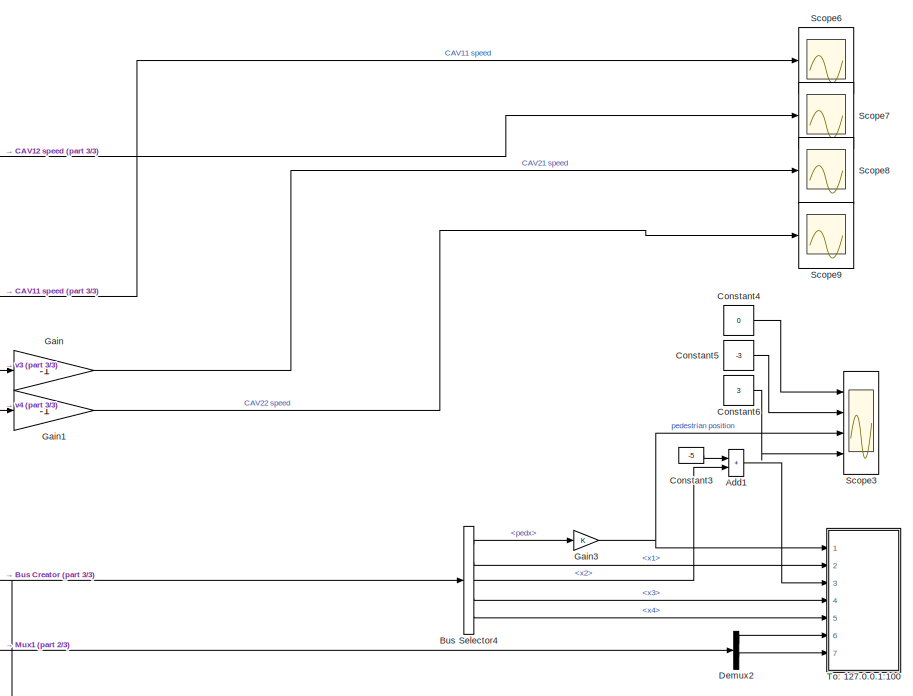
[diagram: root canvas - part 1/3, top right region]
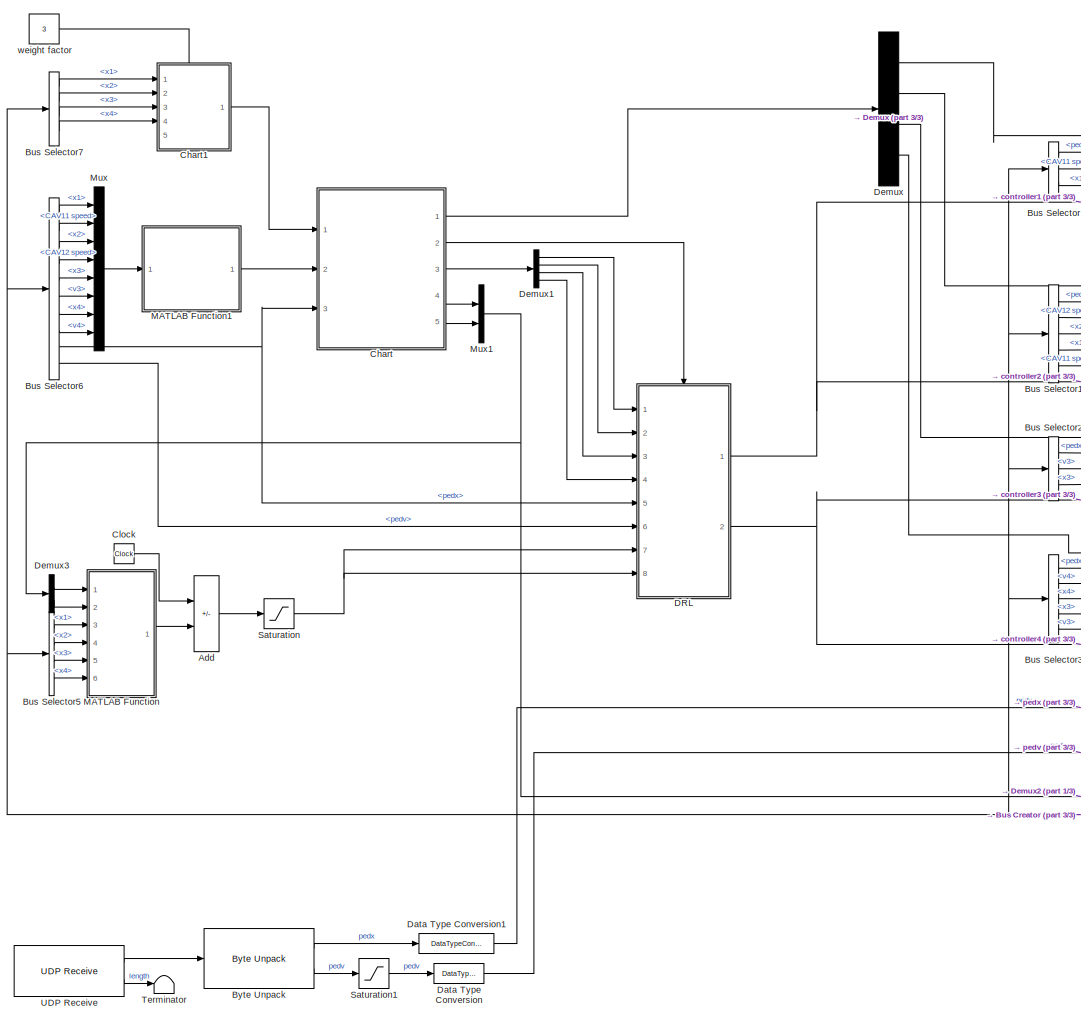
[diagram: root canvas - part 2/3, left side, full height]
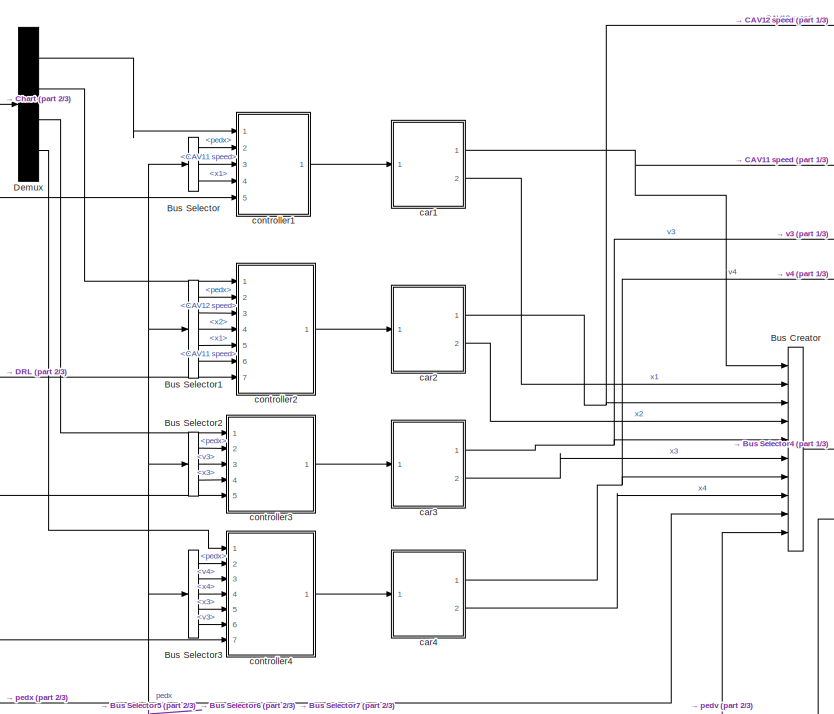
[diagram: root canvas - part 3/3, central region]
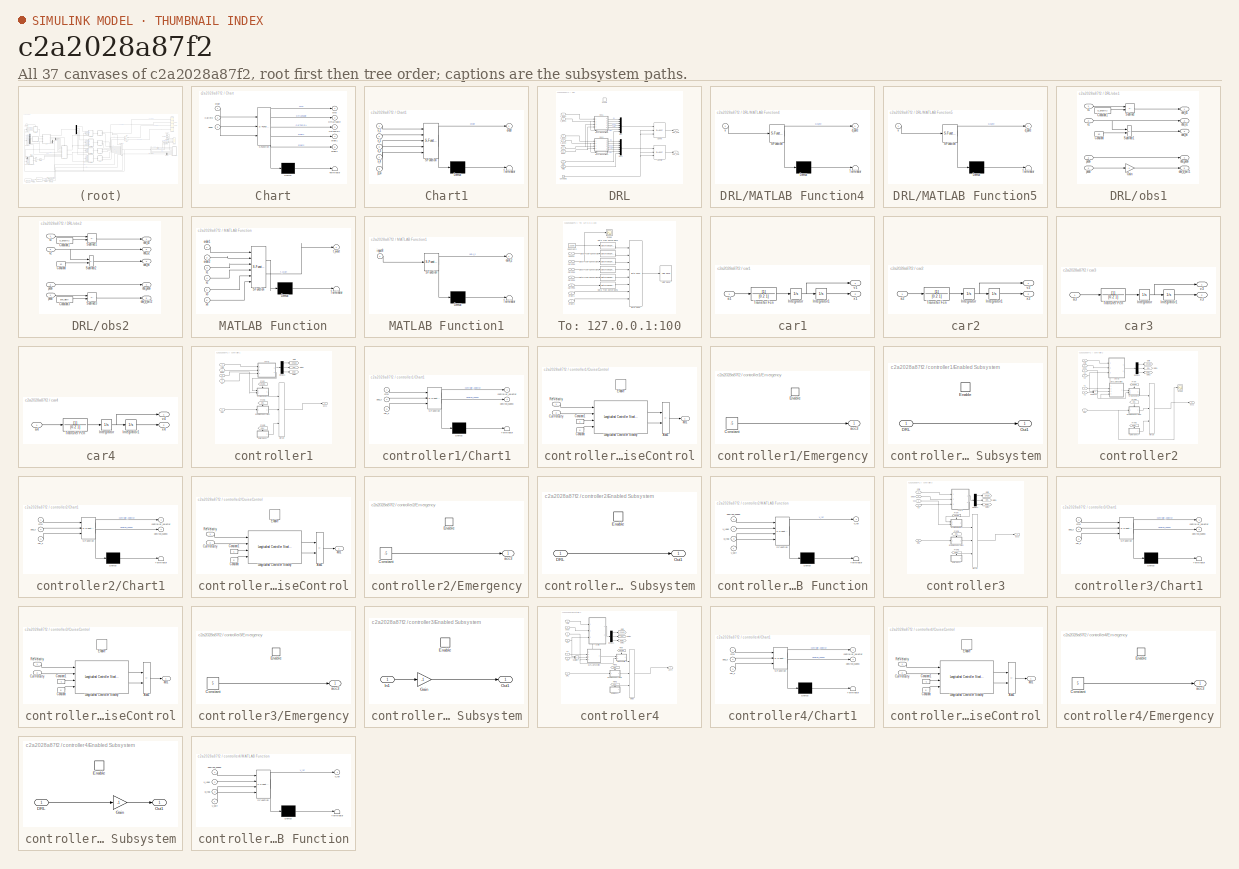
[diagram: thumbnail index - all 37 canvases of the model, root first then tree order]
MODEL slx_c2a2028a87f2
KIND model
CONFIG AbsTol = auto
CONFIG EnableMultiTasking = off
CONFIG FixedStep = auto
CONFIG MaxStep = auto
CONFIG MinStep = auto
CONFIG RelTol = 1e-3
CONFIG SampleTimeConstraint = Unconstrained
CONFIG SolverName = VariableStepAuto
CONFIG StartTime = 0.0
CONFIG StopTime = 30
BLOCK [Sum] Add
  IconShape = rectangular
  Inputs = -+
  Ports = [2, 1]
BLOCK [Sum] Add1
  IconShape = rectangular
  Ports = [2, 1]
BLOCK [BusCreator] Bus Creator
  DisplayOption = bar
  InheritFromInputs = on
  Inputs = 10
  Ports = [10, 1]
BLOCK [BusSelector] Bus Selector
  OutputSignals = pedx,CAV11 speed,x1
  Ports = [1, 3]
BLOCK [BusSelector] Bus Selector1
  OutputSignals = pedx,CAV12 speed,x2,x1,CAV11 speed
  Ports = [1, 5]
BLOCK [BusSelector] Bus Selector2
  OutputSignals = pedx,v3,x3
  Ports = [1, 3]
BLOCK [BusSelector] Bus Selector3
  OutputSignals = pedx,v4,x4,x3,v3
  Ports = [1, 5]
BLOCK [BusSelector] Bus Selector4
  OutputSignals = pedx,x1,x2,x3,x4
  Ports = [1, 5]
BLOCK [BusSelector] Bus Selector5
  OutputSignals = x1,x2,x3,x4
  Ports = [1, 4]
BLOCK [BusSelector] Bus Selector6
  OutputSignals = x1,CAV11 speed,x2,CAV12 speed,x3,v3,x4,v4,pedx,pedv
  Ports = [1, 10]
BLOCK [BusSelector] Bus Selector7
  OutputSignals = x1,x2,x3,x4
  Ports = [1, 4]
BLOCK [Reference] Byte Unpack  REF=etargetslib/Byte Unpack
  Ports = [1, 2]
  SourceBlock = etargetslib/Byte Unpack
  SourceProductBaseCode = ME
  SourceType = Byte Unpack
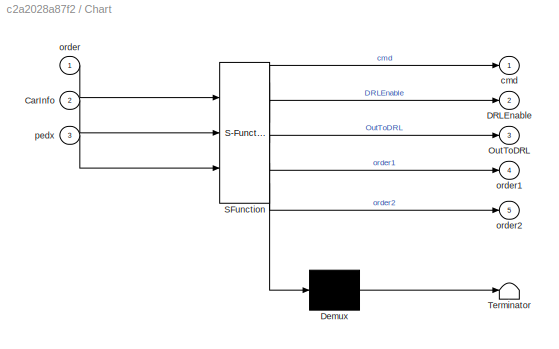
BLOCK [SubSystem] Chart
  ErrorFcn = Stateflow.Translate.translate
  PermitHierarchicalResolution = ExplicitOnly
  Ports = [3, 5]
  RequestExecContextInheritance = off
  SFBlockType = Chart
  TreatAsAtomicUnit = on
BLOCK [Demux] Chart/ Demux 
  Outputs = 1
  Ports = [1, 1]
BLOCK [S-Function] Chart/ SFunction 
  EnableBusSupport = on
  FunctionName = sf_sfun
  PortCounts = [3 6]
  Ports = [3, 6]
  SFcnIsStateOwnerBlock = off
  SFunctionDeploymentMode = off
  Tag = Stateflow S-Function 8
BLOCK [Terminator] Chart/ Terminator 
BLOCK [Inport] Chart/CarInfo
  Port = 2
BLOCK [Outport] Chart/DRLEnable
  Port = 2
BLOCK [Outport] Chart/OutToDRL
  Port = 3
BLOCK [Outport] Chart/cmd
BLOCK [Inport] Chart/order
BLOCK [Outport] Chart/order1
  Port = 4
BLOCK [Outport] Chart/order2
  Port = 5
BLOCK [Inport] Chart/pedx
  Port = 3
BLOCK [SubSystem] Chart1
  ErrorFcn = Stateflow.Translate.translate
  PermitHierarchicalResolution = ExplicitOnly
  PortSchema = {"entries":[{"content":{"sides":[{"content":{"connectorIds":["In1","In2","In3","In4"]},"type":"ConnectorPlacement.EquallySpacedRectSide","uuid":"8a846dc3-1f93-46d5-8c0a-752417c681d9"},{"content":{"connectorIds":["Out1"],"side":"RIGHT"},"type":"ConnectorPlacement.EquallySpacedRectSide","uuid":"76ec7057-478a-4564-adde-c35c4c2d4bf9"},{"content":{"connectorIds":["In5"],"side":"TOP"},"type":"ConnectorP...<+263ch>
  Ports = [5, 1]
  RequestExecContextInheritance = off
  SFBlockType = Chart
  TreatAsAtomicUnit = on
BLOCK [Demux] Chart1/ Demux 
  Outputs = 1
  Ports = [1, 1]
BLOCK [S-Function] Chart1/ SFunction 
  EnableBusSupport = on
  FunctionName = sf_sfun
  PortCounts = [5 2]
  Ports = [5, 2]
  SFcnIsStateOwnerBlock = off
  SFunctionDeploymentMode = off
  Tag = Stateflow S-Function 11
BLOCK [Terminator] Chart1/ Terminator 
BLOCK [Outport] Chart1/order
BLOCK [Inport] Chart1/p_w
  Port = 5
BLOCK [Inport] Chart1/x_1
BLOCK [Inport] Chart1/x_2
  Port = 2
BLOCK [Inport] Chart1/x_3
  Port = 3
BLOCK [Inport] Chart1/x_4
  Port = 4
BLOCK [Clock] Clock
BLOCK [Constant] Constant3
  Value = -5
BLOCK [Constant] Constant4
  Value = 0
BLOCK [Constant] Constant5
  Value = -3
BLOCK [Constant] Constant6
  Value = 3
BLOCK [SubSystem] DRL
  Ports = [8, 2, 1]
  RequestExecContextInheritance = off
  TreatAsAtomicUnit = on
BLOCK [Reference] DRL/Agent A  REF=rllib/RL Agent
  Ports = [3, 1]
  SourceBlock = rllib/RL Agent
  SourceProductBaseCode = RL
  SourceType = RL Agent
BLOCK [Reference] DRL/Agent B  REF=rllib/RL Agent
  Ports = [3, 1]
  SourceBlock = rllib/RL Agent
  SourceProductBaseCode = RL
  SourceType = RL Agent
BLOCK [Constant] DRL/Constant2
  Value = 0
BLOCK [Outport] DRL/DRL_out1
BLOCK [Outport] DRL/DRL_out2
  Port = 2
BLOCK [EnablePort] DRL/Enable
  Ports = []
BLOCK [SubSystem] DRL/MATLAB Function4
  ErrorFcn = Stateflow.Translate.translate
  PermitHierarchicalResolution = ExplicitOnly
  Ports = [1, 1]
  RequestExecContextInheritance = off
  SFBlockType = MATLAB Function
  TreatAsAtomicUnit = on
BLOCK [Demux] DRL/MATLAB Function4/ Demux 
  Outputs = 1
  Ports = [1, 1]
BLOCK [S-Function] DRL/MATLAB Function4/ SFunction 
  EnableBusSupport = on
  FunctionName = sf_sfun
  PortCounts = [1 2]
  Ports = [1, 2]
  SFcnIsStateOwnerBlock = off
  SFunctionDeploymentMode = off
  Tag = Stateflow S-Function 7
BLOCK [Terminator] DRL/MATLAB Function4/ Terminator 
BLOCK [Outport] DRL/MATLAB Function4/d_safe
BLOCK [Inport] DRL/MATLAB Function4/v
BLOCK [SubSystem] DRL/MATLAB Function5
  ErrorFcn = Stateflow.Translate.translate
  PermitHierarchicalResolution = ExplicitOnly
  Ports = [1, 1]
  RequestExecContextInheritance = off
  SFBlockType = MATLAB Function
  TreatAsAtomicUnit = on
BLOCK [Demux] DRL/MATLAB Function5/ Demux 
  Outputs = 1
  Ports = [1, 1]
BLOCK [S-Function] DRL/MATLAB Function5/ SFunction 
  EnableBusSupport = on
  FunctionName = sf_sfun
  PortCounts = [1 2]
  Ports = [1, 2]
  SFcnIsStateOwnerBlock = off
  SFunctionDeploymentMode = off
  Tag = Stateflow S-Function 10
BLOCK [Terminator] DRL/MATLAB Function5/ Terminator 
BLOCK [Outport] DRL/MATLAB Function5/d_safe
BLOCK [Inport] DRL/MATLAB Function5/v
BLOCK [Mux] DRL/Mux
  DisplayOption = bar
  Inputs = 7
  Ports = [7, 1]
BLOCK [Mux] DRL/Mux1
  DisplayOption = bar
  Inputs = 7
  Ports = [7, 1]
BLOCK [SubSystem] DRL/obs1
  Ports = [4, 5]
  RequestExecContextInheritance = off
BLOCK [Constant] DRL/obs1/Constant
  Value = 10
BLOCK [Constant] DRL/obs1/Constant1
  Value = cz_length/2
BLOCK [Gain] DRL/obs1/Gain
  Gain = -1
BLOCK [Sum] DRL/obs1/Subtract
  IconShape = rectangular
  Inputs = --
  Ports = [2, 1]
BLOCK [Sum] DRL/obs1/Subtract1
  IconShape = rectangular
  Inputs = -+
  Ports = [2, 1]
BLOCK [Outport] DRL/obs1/obs_d1
BLOCK [Outport] DRL/obs1/obs_d_exit1
  Port = 5
BLOCK [Outport] DRL/obs1/obs_ev
  Port = 3
BLOCK [Outport] DRL/obs1/obs_pedv
  Port = 4
BLOCK [Outport] DRL/obs1/obs_v1
  Port = 2
BLOCK [Inport] DRL/obs1/pedv
  Port = 3
BLOCK [Inport] DRL/obs1/pedx
  Port = 4
BLOCK [Inport] DRL/obs1/v1
  Port = 2
BLOCK [Inport] DRL/obs1/x1
BLOCK [SubSystem] DRL/obs2
  Ports = [4, 5]
  RequestExecContextInheritance = off
BLOCK [Constant] DRL/obs2/Constant
  Value = 10
BLOCK [Constant] DRL/obs2/Constant1
  Value = cz_length/2
BLOCK [Constant] DRL/obs2/Constant3
  Value = lane_width
BLOCK [Sum] DRL/obs2/Subtract1
  IconShape = rectangular
  Inputs = +-
  Ports = [2, 1]
BLOCK [Sum] DRL/obs2/Subtract2
  IconShape = rectangular
  Inputs = -+
  Ports = [2, 1]
BLOCK [Sum] DRL/obs2/Subtract3
  IconShape = rectangular
  Inputs = -+
  Ports = [2, 1]
BLOCK [Outport] DRL/obs2/obs_d2
BLOCK [Outport] DRL/obs2/obs_d_exit2
  Port = 5
BLOCK [Outport] DRL/obs2/obs_ev
  Port = 3
BLOCK [Outport] DRL/obs2/obs_pedv
  Port = 4
BLOCK [Outport] DRL/obs2/obs_v2
  Port = 2
BLOCK [Inport] DRL/obs2/pedv
  Port = 3
BLOCK [Inport] DRL/obs2/pedx
  Port = 4
BLOCK [Inport] DRL/obs2/v2
  Port = 2
BLOCK [Inport] DRL/obs2/x2
BLOCK [Inport] DRL/pedv
  Port = 6
BLOCK [Inport] DRL/pedx
  Port = 5
BLOCK [Inport] DRL/v_lane1
  Port = 2
BLOCK [Inport] DRL/v_lane2
  Port = 4
BLOCK [Inport] DRL/wait1
  Port = 7
BLOCK [Inport] DRL/wait2
  Port = 8
BLOCK [Inport] DRL/x_lane1
BLOCK [Inport] DRL/x_lane2
  Port = 3
BLOCK [DataTypeConversion] Data Type Conversion
  OutDataTypeStr = double
  RndMeth = Floor
  SaturateOnIntegerOverflow = off
BLOCK [DataTypeConversion] Data Type Conversion1
  OutDataTypeStr = double
  RndMeth = Floor
  SaturateOnIntegerOverflow = off
BLOCK [Demux] Demux
  Ports = [1, 4]
BLOCK [Demux] Demux1
  Ports = [1, 4]
BLOCK [Demux] Demux2
  Outputs = 2
  Ports = [1, 2]
BLOCK [Demux] Demux3
  Outputs = 2
  Ports = [1, 2]
BLOCK [Gain] Gain
  Gain = -1
BLOCK [Gain] Gain1
  Gain = -1
BLOCK [Gain] Gain3
BLOCK [SubSystem] MATLAB Function
  ErrorFcn = Stateflow.Translate.translate
  PermitHierarchicalResolution = ExplicitOnly
  Ports = [6, 1]
  RequestExecContextInheritance = off
  SFBlockType = MATLAB Function
  TreatAsAtomicUnit = on
BLOCK [Demux] MATLAB Function/ Demux 
  Outputs = 1
  Ports = [1, 1]
BLOCK [S-Function] MATLAB Function/ SFunction 
  EnableBusSupport = on
  FunctionName = sf_sfun
  PortCounts = [6 2]
  Ports = [6, 2]
  SFcnIsStateOwnerBlock = off
  SFunctionDeploymentMode = off
  Tag = Stateflow S-Function 12
BLOCK [Terminator] MATLAB Function/ Terminator 
BLOCK [Inport] MATLAB Function/order1
BLOCK [Inport] MATLAB Function/order2
  Port = 2
BLOCK [Outport] MATLAB Function/t_wait
BLOCK [Inport] MATLAB Function/x1
  Port = 3
BLOCK [Inport] MATLAB Function/x2
  Port = 4
BLOCK [Inport] MATLAB Function/x3
  Port = 5
BLOCK [Inport] MATLAB Function/x4
  Port = 6
BLOCK [SubSystem] MATLAB Function1
  ErrorFcn = Stateflow.Translate.translate
  PermitHierarchicalResolution = ExplicitOnly
  Ports = [1, 1]
  RequestExecContextInheritance = off
  SFBlockType = MATLAB Function
  TreatAsAtomicUnit = on
BLOCK [Demux] MATLAB Function1/ Demux 
  Outputs = 1
  Ports = [1, 1]
BLOCK [S-Function] MATLAB Function1/ SFunction 
  EnableBusSupport = on
  FunctionName = sf_sfun
  PortCounts = [1 2]
  Ports = [1, 2]
  SFcnIsStateOwnerBlock = off
  SFunctionDeploymentMode = off
  Tag = Stateflow S-Function 9
BLOCK [Terminator] MATLAB Function1/ Terminator 
BLOCK [Inport] MATLAB Function1/input8
BLOCK [Outport] MATLAB Function1/out4_2
BLOCK [Mux] Mux
  DisplayOption = bar
  Inputs = 8
  Ports = [8, 1]
BLOCK [Mux] Mux1
  DisplayOption = bar
  Inputs = 2
  Ports = [2, 1]
BLOCK [Saturate] Saturation
  LowerLimit = 0
  UpperLimit = 20
BLOCK [Saturate] Saturation1
  LowerLimit = 0
  UpperLimit = 2
BLOCK [Scope] Scope3
  Floating = off
  NumInputPorts = 4
  Ports = [4]
  ScopeSpecificationString = Simulink.scopes.TimeScopeBlockCfg('CurrentConfiguration', extmgr.ConfigurationSet(extmgr.Configuration('Core','General UI',true,'FigureColor',[1 1 1],'ShowStatusbar',false),extmgr.Configuration('Core','Source UI',true),extmgr.Configuration('Sources','WiredSimulink',true,'DataLoggingVariableName','ScopeData1'),extmgr.Configuration('Visuals','Time Domain',true,'SerializedDisplays',{struct('MinYLimRe...<+1894ch>
BLOCK [Scope] Scope6
  Floating = off
  NumInputPorts = 1
  Ports = [1]
  ScopeSpecificationString = Simulink.scopes.TimeScopeBlockCfg('CurrentConfiguration', extmgr.ConfigurationSet(extmgr.Configuration('Core','General UI',true,'FigureColor',[1 1 1],'ShowStatusbar',false),extmgr.Configuration('Core','Source UI',true),extmgr.Configuration('Sources','WiredSimulink',true,'DataLoggingVariableName','ScopeData2','DataLoggingSaveFormat','Structure'),extmgr.Configuration('Visuals','Time Domain',true,'Se...<+1838ch>
BLOCK [Scope] Scope7
  Floating = off
  NumInputPorts = 1
  Ports = [1]
  ScopeSpecificationString = Simulink.scopes.TimeScopeBlockCfg('CurrentConfiguration', extmgr.ConfigurationSet(extmgr.Configuration('Core','General UI',true,'FigureColor',[1 1 1],'ShowStatusbar',false),extmgr.Configuration('Core','Source UI',true),extmgr.Configuration('Sources','WiredSimulink',true,'DataLoggingVariableName','ScopeData3','DataLoggingSaveFormat','Structure'),extmgr.Configuration('Visuals','Time Domain',true,'Se...<+1793ch>
BLOCK [Scope] Scope8
  Floating = off
  NumInputPorts = 1
  Ports = [1]
  ScopeSpecificationString = Simulink.scopes.TimeScopeBlockCfg('CurrentConfiguration', extmgr.ConfigurationSet(extmgr.Configuration('Core','General UI',true,'FigureColor',[1 1 1],'ShowStatusbar',false,'ShowMainToolbar',false),extmgr.Configuration('Core','Source UI',true),extmgr.Configuration('Sources','WiredSimulink',true,'DataLoggingVariableName','ScopeData4','DataLoggingSaveFormat','Structure'),extmgr.Configuration('Visuals...<+1860ch>
BLOCK [Scope] Scope9
  Floating = off
  NumInputPorts = 1
  Ports = [1]
  ScopeSpecificationString = Simulink.scopes.TimeScopeBlockCfg('CurrentConfiguration', extmgr.ConfigurationSet(extmgr.Configuration('Core','General UI',true,'FigureColor',[1 1 1],'ShowStatusbar',false),extmgr.Configuration('Core','Source UI',true),extmgr.Configuration('Sources','WiredSimulink',true,'DataLoggingVariableName','ScopeData5','DataLoggingSaveFormat','Structure'),extmgr.Configuration('Visuals','Time Domain',true,'Se...<+1795ch>
BLOCK [Terminator] Terminator
BLOCK [SubSystem] To: 127.0.0.1:100
  Ports = [7]
  RequestExecContextInheritance = off
BLOCK [Reference] To: 127.0.0.1:100/Byte Pack  REF=etargetslib/Byte Pack
  Ports = [8, 1]
  SourceBlock = etargetslib/Byte Pack
  SourceProductBaseCode = ME
  SourceType = Byte pack
BLOCK [Inport] To: 127.0.0.1:100/Car2Pos
  Port = 3
BLOCK [Inport] To: 127.0.0.1:100/Car3Pos
  Port = 4
BLOCK [Inport] To: 127.0.0.1:100/Car4Pos
  Port = 5
BLOCK [Constant] To: 127.0.0.1:100/Constant2
  SampleTime = 0.02
  Value = 23205
BLOCK [DataTypeConversion] To: 127.0.0.1:100/Data Type Conversion
  OutDataTypeStr = single
  RndMeth = Floor
  SaturateOnIntegerOverflow = off
BLOCK [DataTypeConversion] To: 127.0.0.1:100/Data Type Conversion1
  OutDataTypeStr = single
  RndMeth = Floor
  SaturateOnIntegerOverflow = off
BLOCK [DataTypeConversion] To: 127.0.0.1:100/Data Type Conversion2
  OutDataTypeStr = single
  RndMeth = Floor
  SaturateOnIntegerOverflow = off
BLOCK [DataTypeConversion] To: 127.0.0.1:100/Data Type Conversion3
  OutDataTypeStr = uint16
  RndMeth = Floor
  SaturateOnIntegerOverflow = off
BLOCK [DataTypeConversion] To: 127.0.0.1:100/Data Type Conversion4
  OutDataTypeStr = single
  RndMeth = Floor
  SaturateOnIntegerOverflow = off
BLOCK [DataTypeConversion] To: 127.0.0.1:100/Data Type Conversion5
  OutDataTypeStr = single
  RndMeth = Floor
  SaturateOnIntegerOverflow = off
BLOCK [Scope] To: 127.0.0.1:100/Scope
  Floating = off
  NumInputPorts = 1
  Ports = [1]
  ScopeSpecificationString = Simulink.scopes.TimeScopeBlockCfg('CurrentConfiguration', extmgr.ConfigurationSet(extmgr.Configuration('Core','General UI',true),extmgr.Configuration('Core','Source UI',true),extmgr.Configuration('Sources','WiredSimulink',true,'DataLoggingVariableName','ScopeData1'),extmgr.Configuration('Visuals','Time Domain',true,'SerializedDisplays',{struct('MinYLimReal','-40.00000','MaxYLimReal','-20.00000','Y...<+1403ch>
BLOCK [Reference] To: 127.0.0.1:100/UDP Send  REF=dspnetwork/UDP Send
  Ports = [1]
  SourceBlock = dspnetwork/UDP Send
  SourceProductBaseCode = SL
  SourceType = UDP Send
BLOCK [Inport] To: 127.0.0.1:100/car1Pos
  Port = 2
BLOCK [Inport] To: 127.0.0.1:100/order1
  Port = 6
BLOCK [Inport] To: 127.0.0.1:100/order2
  Port = 7
BLOCK [Inport] To: 127.0.0.1:100/pedPos
BLOCK [Reference] UDP Receive  REF=dspnetwork/UDP Receive
  Ports = [0, 2]
  SourceBlock = dspnetwork/UDP Receive
  SourceProductBaseCode = SL
  SourceType = UDP Receive
BLOCK [SubSystem] car1
  Ports = [1, 2]
  RequestExecContextInheritance = off
BLOCK [Integrator] car1/Integrator
  InitialCondition = 10
  LimitOutput = on
  LowerSaturationLimit = 0
  Ports = [1, 1]
BLOCK [Integrator] car1/Integrator1
  InitialCondition = -30
  Ports = [1, 1]
BLOCK [TransferFcn] car1/Transfer Fcn
  Denominator = [0.2 1]
BLOCK [Inport] car1/a1
BLOCK [Outport] car1/v1
BLOCK [Outport] car1/x1
  Port = 2
BLOCK [SubSystem] car2
  Ports = [1, 2]
  RequestExecContextInheritance = off
BLOCK [Integrator] car2/Integrator
  InitialCondition = 10
  LimitOutput = on
  LowerSaturationLimit = 0
  Ports = [1, 1]
BLOCK [Integrator] car2/Integrator1
  InitialCondition = -75
  Ports = [1, 1]
BLOCK [TransferFcn] car2/Transfer Fcn
  Denominator = [0.2 1]
BLOCK [Inport] car2/a2
BLOCK [Outport] car2/v2
BLOCK [Outport] car2/x2
  Port = 2
BLOCK [SubSystem] car3
  Ports = [1, 2]
  RequestExecContextInheritance = off
BLOCK [Integrator] car3/Integrator
  InitialCondition = -10
  LimitOutput = on
  Ports = [1, 1]
  UpperSaturationLimit = 0
BLOCK [Integrator] car3/Integrator1
  InitialCondition = 35
  Ports = [1, 1]
BLOCK [TransferFcn] car3/Transfer Fcn
  Denominator = [0.2 1]
BLOCK [Inport] car3/a3
BLOCK [Outport] car3/v3
BLOCK [Outport] car3/x3
  Port = 2
BLOCK [SubSystem] car4
  Ports = [1, 2]
  RequestExecContextInheritance = off
BLOCK [Integrator] car4/Integrator
  InitialCondition = -10
  LimitOutput = on
  Ports = [1, 1]
  UpperSaturationLimit = 0
BLOCK [Integrator] car4/Integrator1
  InitialCondition = 70
  Ports = [1, 1]
BLOCK [TransferFcn] car4/Transfer Fcn
  Denominator = [0.2 1]
BLOCK [Inport] car4/a4
BLOCK [Outport] car4/v4
BLOCK [Outport] car4/x4
  Port = 2
BLOCK [SubSystem] controller1
  Ports = [5, 1]
  RequestExecContextInheritance = off
BLOCK [SubSystem] controller1/Chart1
  ErrorFcn = Stateflow.Translate.translate
  PermitHierarchicalResolution = ExplicitOnly
  Ports = [3, 2]
  RequestExecContextInheritance = off
  SFBlockType = Chart
  TreatAsAtomicUnit = on
BLOCK [Demux] controller1/Chart1/ Demux 
  Outputs = 1
  Ports = [1, 1]
BLOCK [S-Function] controller1/Chart1/ SFunction 
  EnableBusSupport = on
  FunctionName = sf_sfun
  PortCounts = [3 3]
  Ports = [3, 3]
  SFcnIsStateOwnerBlock = off
  SFunctionDeploymentMode = off
  Tag = Stateflow S-Function 1
BLOCK [Terminator] controller1/Chart1/ Terminator 
BLOCK [Inport] controller1/Chart1/car_x
  Port = 3
BLOCK [Inport] controller1/Chart1/cmd
BLOCK [Outport] controller1/Chart1/controller_selector
BLOCK [Outport] controller1/Chart1/desired_speed
  Port = 2
BLOCK [Inport] controller1/Chart1/ped_x
  Port = 2
BLOCK [SubSystem] controller1/CruiseControl
  Ports = [2, 1, 1]
  RequestExecContextInheritance = off
  TreatAsAtomicUnit = on
BLOCK [Sum] controller1/CruiseControl/Add1
  IconShape = rectangular
  Inputs = +-
  Ports = [2, 1]
BLOCK [Constant] controller1/CruiseControl/Constant
  Value = 0
BLOCK [Constant] controller1/CruiseControl/Constant1
BLOCK [Inport] controller1/CruiseControl/CurrVelocity
  Port = 2
BLOCK [EnablePort] controller1/CruiseControl/Enable
  Ports = []
BLOCK [Reference] controller1/CruiseControl/Longitudinal Controller Stanley  REF=drivingvehiclecontroller/Longitudinal Controller Stanley
  Ports = [4, 2]
  SourceBlock = drivingvehiclecontroller/Longitudinal Controller Stanley
  SourceProductBaseCode = DR
  SourceType = Longitudinal Controller Stanley
BLOCK [Inport] controller1/CruiseControl/RefVelocity
BLOCK [Outport] controller1/CruiseControl/acc1
BLOCK [Inport] controller1/DRL
  Port = 5
BLOCK [Demux] controller1/Demux1
  Outputs = 3
  Ports = [1, 3]
BLOCK [SubSystem] controller1/Emergency
  Ports = [0, 1, 1]
  RequestExecContextInheritance = off
  TreatAsAtomicUnit = on
BLOCK [Constant] controller1/Emergency/Constant
  SampleTime = 0.1
  Value = -5
BLOCK [EnablePort] controller1/Emergency/Enable
  Ports = []
BLOCK [Outport] controller1/Emergency/acc3
BLOCK [SubSystem] controller1/Enabled Subsystem
  Ports = [1, 1, 1]
  RequestExecContextInheritance = off
  TreatAsAtomicUnit = on
BLOCK [Inport] controller1/Enabled Subsystem/DRL
BLOCK [EnablePort] controller1/Enabled Subsystem/Enable
  Ports = []
BLOCK [Outport] controller1/Enabled Subsystem/Out1
  InitialOutput = 0
  VectorParamsAs1DForOutWhenUnconnected = off
BLOCK [From] controller1/From
  GotoTag = CRUISE
  NameLocation = left
BLOCK [From] controller1/From1
  GotoTag = DRL
  NameLocation = left
BLOCK [From] controller1/From2
  GotoTag = Emer
  NameLocation = left
BLOCK [Goto] controller1/Goto
  GotoTag = CRUISE
BLOCK [Goto] controller1/Goto1
  GotoTag = DRL
BLOCK [Goto] controller1/Goto2
  GotoTag = Emer
BLOCK [Merge] controller1/Merge
  Inputs = 3
  Ports = [3, 1]
BLOCK [Outport] controller1/acc1
BLOCK [Inport] controller1/cmd
BLOCK [Inport] controller1/pedx
  Port = 2
BLOCK [Inport] controller1/v1
  Port = 3
BLOCK [Inport] controller1/x1
  Port = 4
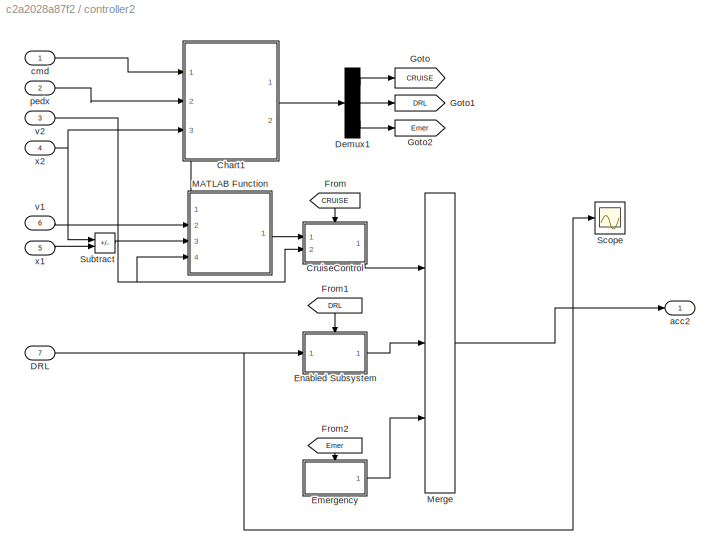
BLOCK [SubSystem] controller2
  Ports = [7, 1]
  RequestExecContextInheritance = off
BLOCK [SubSystem] controller2/Chart1
  ErrorFcn = Stateflow.Translate.translate
  PermitHierarchicalResolution = ExplicitOnly
  PortSchema = {"entries":[{"content":{"sides":[{"content":{"connectorIds":["In1","In2","In3"]},"type":"ConnectorPlacement.EquallySpacedRectSide","uuid":"455bd830-a1ef-4c86-a39e-ffcd744a214a"},{"content":{"connectorIds":["Out1"],"side":"RIGHT"},"type":"ConnectorPlacement.EquallySpacedRectSide","uuid":"1375661e-f65f-4def-9293-a9836a9e5dc7"},{"content":{"connectorIds":[],"side":"TOP"},"type":"ConnectorPlacement.Eq...<+404ch>
  Ports = [3, 2]
  RequestExecContextInheritance = off
  SFBlockType = Chart
  TreatAsAtomicUnit = on
BLOCK [Demux] controller2/Chart1/ Demux 
  Outputs = 1
  Ports = [1, 1]
BLOCK [S-Function] controller2/Chart1/ SFunction 
  EnableBusSupport = on
  FunctionName = sf_sfun
  PortCounts = [3 3]
  Ports = [3, 3]
  SFcnIsStateOwnerBlock = off
  SFunctionDeploymentMode = off
  Tag = Stateflow S-Function 2
BLOCK [Terminator] controller2/Chart1/ Terminator 
BLOCK [Inport] controller2/Chart1/car_x
  Port = 3
BLOCK [Inport] controller2/Chart1/cmd
BLOCK [Outport] controller2/Chart1/controller_selector
BLOCK [Outport] controller2/Chart1/desired_speed
  Port = 2
BLOCK [Inport] controller2/Chart1/ped_x
  Port = 2
BLOCK [SubSystem] controller2/CruiseControl
  Ports = [2, 1, 1]
  RequestExecContextInheritance = off
  TreatAsAtomicUnit = on
BLOCK [Sum] controller2/CruiseControl/Add1
  IconShape = rectangular
  Inputs = +-
  Ports = [2, 1]
BLOCK [Constant] controller2/CruiseControl/Constant
  Value = 0
BLOCK [Constant] controller2/CruiseControl/Constant1
BLOCK [Inport] controller2/CruiseControl/CurrVelocity
  Port = 2
BLOCK [EnablePort] controller2/CruiseControl/Enable
  Ports = []
BLOCK [Reference] controller2/CruiseControl/Longitudinal Controller Stanley  REF=drivingvehiclecontroller/Longitudinal Controller Stanley
  Ports = [4, 2]
  SourceBlock = drivingvehiclecontroller/Longitudinal Controller Stanley
  SourceProductBaseCode = DR
  SourceType = Longitudinal Controller Stanley
BLOCK [Inport] controller2/CruiseControl/RefVelocity
BLOCK [Outport] controller2/CruiseControl/acc1
BLOCK [Inport] controller2/DRL
  Port = 7
BLOCK [Demux] controller2/Demux1
  Outputs = 3
  Ports = [1, 3]
BLOCK [SubSystem] controller2/Emergency
  Ports = [0, 1, 1]
  RequestExecContextInheritance = off
  TreatAsAtomicUnit = on
BLOCK [Constant] controller2/Emergency/Constant
  SampleTime = 0.1
  Value = -5
BLOCK [EnablePort] controller2/Emergency/Enable
  Ports = []
BLOCK [Outport] controller2/Emergency/acc3
BLOCK [SubSystem] controller2/Enabled Subsystem
  Ports = [1, 1, 1]
  RequestExecContextInheritance = off
  TreatAsAtomicUnit = on
BLOCK [Inport] controller2/Enabled Subsystem/DRL
BLOCK [EnablePort] controller2/Enabled Subsystem/Enable
  Ports = []
BLOCK [Outport] controller2/Enabled Subsystem/Out1
  InitialOutput = 0
  VectorParamsAs1DForOutWhenUnconnected = off
BLOCK [From] controller2/From
  GotoTag = CRUISE
  NameLocation = left
BLOCK [From] controller2/From1
  GotoTag = DRL
  NameLocation = left
BLOCK [From] controller2/From2
  GotoTag = Emer
  NameLocation = left
BLOCK [Goto] controller2/Goto
  GotoTag = CRUISE
BLOCK [Goto] controller2/Goto1
  GotoTag = DRL
BLOCK [Goto] controller2/Goto2
  GotoTag = Emer
BLOCK [SubSystem] controller2/MATLAB Function
  ErrorFcn = Stateflow.Translate.translate
  PermitHierarchicalResolution = ExplicitOnly
  Ports = [4, 1]
  RequestExecContextInheritance = off
  SFBlockType = MATLAB Function
  TreatAsAtomicUnit = on
BLOCK [Demux] controller2/MATLAB Function/ Demux 
  Outputs = 1
  Ports = [1, 1]
BLOCK [S-Function] controller2/MATLAB Function/ SFunction 
  EnableBusSupport = on
  FunctionName = sf_sfun
  PortCounts = [4 2]
  Ports = [4, 2]
  SFcnIsStateOwnerBlock = off
  SFunctionDeploymentMode = off
  Tag = Stateflow S-Function 5
BLOCK [Terminator] controller2/MATLAB Function/ Terminator 
BLOCK [Inport] controller2/MATLAB Function/d_real
  Port = 3
BLOCK [Inport] controller2/MATLAB Function/desired_speed
BLOCK [Inport] controller2/MATLAB Function/v_lead
  Port = 2
BLOCK [Outport] controller2/MATLAB Function/v_ref
BLOCK [Inport] controller2/MATLAB Function/v_self
  Port = 4
BLOCK [Merge] controller2/Merge
  Inputs = 3
  Ports = [3, 1]
BLOCK [Scope] controller2/Scope
  Floating = off
  NumInputPorts = 1
  Ports = [1]
  ScopeSpecificationString = Simulink.scopes.TimeScopeBlockCfg('CurrentConfiguration', extmgr.ConfigurationSet(extmgr.Configuration('Core','General UI',true),extmgr.Configuration('Core','Source UI',true),extmgr.Configuration('Sources','WiredSimulink',true,'DataLoggingVariableName','ScopeData1'),extmgr.Configuration('Visuals','Time Domain',true,'SerializedDisplays',{struct('MinYLimReal','-3.375','MaxYLimReal','0.375','YLabelRe...<+1380ch>
BLOCK [Sum] controller2/Subtract
  IconShape = rectangular
  Inputs = -+
  Ports = [2, 1]
BLOCK [Outport] controller2/acc2
BLOCK [Inport] controller2/cmd
BLOCK [Inport] controller2/pedx
  Port = 2
BLOCK [Inport] controller2/v1
  Port = 6
BLOCK [Inport] controller2/v2
  Port = 3
BLOCK [Inport] controller2/x1
  Port = 5
BLOCK [Inport] controller2/x2
  Port = 4
BLOCK [SubSystem] controller3
  Ports = [5, 1]
  RequestExecContextInheritance = off
BLOCK [SubSystem] controller3/Chart1
  ErrorFcn = Stateflow.Translate.translate
  PermitHierarchicalResolution = ExplicitOnly
  Ports = [3, 2]
  RequestExecContextInheritance = off
  SFBlockType = Chart
  TreatAsAtomicUnit = on
BLOCK [Demux] controller3/Chart1/ Demux 
  Outputs = 1
  Ports = [1, 1]
BLOCK [S-Function] controller3/Chart1/ SFunction 
  EnableBusSupport = on
  FunctionName = sf_sfun
  PortCounts = [3 3]
  Ports = [3, 3]
  SFcnIsStateOwnerBlock = off
  SFunctionDeploymentMode = off
  Tag = Stateflow S-Function 3
BLOCK [Terminator] controller3/Chart1/ Terminator 
BLOCK [Inport] controller3/Chart1/car_x
  Port = 3
BLOCK [Inport] controller3/Chart1/cmd
BLOCK [Outport] controller3/Chart1/controller_selector
BLOCK [Outport] controller3/Chart1/desired_speed
  Port = 2
BLOCK [Inport] controller3/Chart1/ped_x
  Port = 2
BLOCK [SubSystem] controller3/CruiseControl
  Ports = [2, 1, 1]
  RequestExecContextInheritance = off
  TreatAsAtomicUnit = on
BLOCK [Sum] controller3/CruiseControl/Add1
  IconShape = rectangular
  Inputs = -+
  Ports = [2, 1]
BLOCK [Constant] controller3/CruiseControl/Constant
  Value = 0
BLOCK [Constant] controller3/CruiseControl/Constant1
  Value = -1
BLOCK [Inport] controller3/CruiseControl/CurrVelocity
  Port = 2
BLOCK [EnablePort] controller3/CruiseControl/Enable
  Ports = []
BLOCK [Reference] controller3/CruiseControl/Longitudinal Controller Stanley  REF=drivingvehiclecontroller/Longitudinal Controller Stanley
  Ports = [4, 2]
  SourceBlock = drivingvehiclecontroller/Longitudinal Controller Stanley
  SourceProductBaseCode = DR
  SourceType = Longitudinal Controller Stanley
BLOCK [Inport] controller3/CruiseControl/RefVelocity
BLOCK [Outport] controller3/CruiseControl/acc1
BLOCK [Inport] controller3/DRL
  Port = 5
BLOCK [Demux] controller3/Demux1
  Outputs = 3
  Ports = [1, 3]
BLOCK [SubSystem] controller3/Emergency
  Ports = [0, 1, 1]
  RequestExecContextInheritance = off
  TreatAsAtomicUnit = on
BLOCK [Constant] controller3/Emergency/Constant
  SampleTime = 0.1
  Value = 5
BLOCK [EnablePort] controller3/Emergency/Enable
  Ports = []
BLOCK [Outport] controller3/Emergency/acc3
BLOCK [SubSystem] controller3/Enabled Subsystem
  Ports = [1, 1, 1]
  RequestExecContextInheritance = off
  TreatAsAtomicUnit = on
BLOCK [EnablePort] controller3/Enabled Subsystem/Enable
  Ports = []
BLOCK [Gain] controller3/Enabled Subsystem/Gain
  Gain = -1
BLOCK [Inport] controller3/Enabled Subsystem/In1
BLOCK [Outport] controller3/Enabled Subsystem/Out1
  InitialOutput = 0
  VectorParamsAs1DForOutWhenUnconnected = off
BLOCK [From] controller3/From
  GotoTag = CRUISE
  NameLocation = left
BLOCK [From] controller3/From1
  GotoTag = DRL
  NameLocation = left
BLOCK [From] controller3/From2
  GotoTag = Emer
  NameLocation = left
BLOCK [Goto] controller3/Goto
  GotoTag = CRUISE
BLOCK [Goto] controller3/Goto1
  GotoTag = DRL
BLOCK [Goto] controller3/Goto2
  GotoTag = Emer
BLOCK [Merge] controller3/Merge
  Inputs = 3
  Ports = [3, 1]
BLOCK [Outport] controller3/acc3
BLOCK [Inport] controller3/cmd
BLOCK [Inport] controller3/pedx
  Port = 2
BLOCK [Inport] controller3/v3
  Port = 3
BLOCK [Inport] controller3/x3
  Port = 4
BLOCK [SubSystem] controller4
  Ports = [7, 1]
  RequestExecContextInheritance = off
BLOCK [SubSystem] controller4/Chart1
  ErrorFcn = Stateflow.Translate.translate
  PermitHierarchicalResolution = ExplicitOnly
  PortSchema = {"entries":[{"content":{"sides":[{"content":{"connectorIds":["In1","In2","In3"]},"type":"ConnectorPlacement.EquallySpacedRectSide","uuid":"455bd830-a1ef-4c86-a39e-ffcd744a214a"},{"content":{"connectorIds":["Out1"],"side":"RIGHT"},"type":"ConnectorPlacement.EquallySpacedRectSide","uuid":"1375661e-f65f-4def-9293-a9836a9e5dc7"},{"content":{"connectorIds":[],"side":"TOP"},"type":"ConnectorPlacement.Eq...<+404ch>
  Ports = [3, 2]
  RequestExecContextInheritance = off
  SFBlockType = Chart
  TreatAsAtomicUnit = on
BLOCK [Demux] controller4/Chart1/ Demux 
  Outputs = 1
  Ports = [1, 1]
BLOCK [S-Function] controller4/Chart1/ SFunction 
  EnableBusSupport = on
  FunctionName = sf_sfun
  PortCounts = [3 3]
  Ports = [3, 3]
  SFcnIsStateOwnerBlock = off
  SFunctionDeploymentMode = off
  Tag = Stateflow S-Function 4
BLOCK [Terminator] controller4/Chart1/ Terminator 
BLOCK [Inport] controller4/Chart1/car_x
  Port = 3
BLOCK [Inport] controller4/Chart1/cmd
BLOCK [Outport] controller4/Chart1/controller_selector
BLOCK [Outport] controller4/Chart1/desired_speed
  Port = 2
BLOCK [Inport] controller4/Chart1/ped_x
  Port = 2
BLOCK [SubSystem] controller4/CruiseControl
  Ports = [2, 1, 1]
  RequestExecContextInheritance = off
  TreatAsAtomicUnit = on
BLOCK [Sum] controller4/CruiseControl/Add1
  IconShape = rectangular
  Inputs = -+
  Ports = [2, 1]
BLOCK [Constant] controller4/CruiseControl/Constant
  Value = 0
BLOCK [Constant] controller4/CruiseControl/Constant1
  Value = -1
BLOCK [Inport] controller4/CruiseControl/CurrVelocity
  Port = 2
BLOCK [EnablePort] controller4/CruiseControl/Enable
  Ports = []
BLOCK [Reference] controller4/CruiseControl/Longitudinal Controller Stanley  REF=drivingvehiclecontroller/Longitudinal Controller Stanley
  Ports = [4, 2]
  SourceBlock = drivingvehiclecontroller/Longitudinal Controller Stanley
  SourceProductBaseCode = DR
  SourceType = Longitudinal Controller Stanley
BLOCK [Inport] controller4/CruiseControl/RefVelocity
BLOCK [Outport] controller4/CruiseControl/acc1
BLOCK [Inport] controller4/DRL
  Port = 7
BLOCK [Demux] controller4/Demux1
  Outputs = 3
  Ports = [1, 3]
BLOCK [SubSystem] controller4/Emergency
  Ports = [0, 1, 1]
  RequestExecContextInheritance = off
  TreatAsAtomicUnit = on
BLOCK [Constant] controller4/Emergency/Constant
  SampleTime = 0.1
  Value = 5
BLOCK [EnablePort] controller4/Emergency/Enable
  Ports = []
BLOCK [Outport] controller4/Emergency/acc3
BLOCK [SubSystem] controller4/Enabled Subsystem
  Ports = [1, 1, 1]
  RequestExecContextInheritance = off
  TreatAsAtomicUnit = on
BLOCK [Inport] controller4/Enabled Subsystem/DRL
BLOCK [EnablePort] controller4/Enabled Subsystem/Enable
  Ports = []
BLOCK [Gain] controller4/Enabled Subsystem/Gain
  Gain = -1
BLOCK [Outport] controller4/Enabled Subsystem/Out1
  InitialOutput = 0
  VectorParamsAs1DForOutWhenUnconnected = off
BLOCK [From] controller4/From
  GotoTag = CRUISE
  NameLocation = left
BLOCK [From] controller4/From1
  GotoTag = DRL
  NameLocation = left
BLOCK [From] controller4/From2
  GotoTag = Emer
  NameLocation = left
BLOCK [Goto] controller4/Goto
  GotoTag = CRUISE
BLOCK [Goto] controller4/Goto1
  GotoTag = DRL
BLOCK [Goto] controller4/Goto2
  GotoTag = Emer
BLOCK [SubSystem] controller4/MATLAB Function
  ErrorFcn = Stateflow.Translate.translate
  PermitHierarchicalResolution = ExplicitOnly
  Ports = [4, 1]
  RequestExecContextInheritance = off
  SFBlockType = MATLAB Function
  TreatAsAtomicUnit = on
BLOCK [Demux] controller4/MATLAB Function/ Demux 
  Outputs = 1
  Ports = [1, 1]
BLOCK [S-Function] controller4/MATLAB Function/ SFunction 
  EnableBusSupport = on
  FunctionName = sf_sfun
  PortCounts = [4 2]
  Ports = [4, 2]
  SFcnIsStateOwnerBlock = off
  SFunctionDeploymentMode = off
  Tag = Stateflow S-Function 6
BLOCK [Terminator] controller4/MATLAB Function/ Terminator 
BLOCK [Inport] controller4/MATLAB Function/d_real
  Port = 3
BLOCK [Inport] controller4/MATLAB Function/desired_speed
BLOCK [Inport] controller4/MATLAB Function/v_lead
  Port = 2
BLOCK [Outport] controller4/MATLAB Function/v_ref
BLOCK [Inport] controller4/MATLAB Function/v_self
  Port = 4
BLOCK [Merge] controller4/Merge
  Inputs = 3
  Ports = [3, 1]
BLOCK [Sum] controller4/Subtract
  IconShape = rectangular
  Inputs = +-
  Ports = [2, 1]
BLOCK [Outport] controller4/acc4
BLOCK [Inport] controller4/cmd
BLOCK [Inport] controller4/pedx
  Port = 2
BLOCK [Inport] controller4/v3
  Port = 6
BLOCK [Inport] controller4/v4
  Port = 3
BLOCK [Inport] controller4/x3
  Port = 5
BLOCK [Inport] controller4/x4
  Port = 4
BLOCK [Constant] weight factor
  Value = 3
LINE Add1:1 -> To: 127.0.0.1:100:3
LINE Add:1 -> Saturation:1
NET Bus Creator:1 -> Bus Selector1:1, Bus Selector2:1, Bus Selector3:1, Bus Selector4:1, Bus Selector5:1, Bus Selector6:1, Bus Selector7:1, Bus Selector:1
LINE Bus Selector1:1 -> controller2:2
LINE Bus Selector1:2 -> controller2:3
LINE Bus Selector1:3 -> controller2:4
LINE Bus Selector1:4 -> controller2:5
LINE Bus Selector1:5 -> controller2:6
LINE Bus Selector2:1 -> controller3:2
LINE Bus Selector2:2 -> controller3:3
LINE Bus Selector2:3 -> controller3:4
LINE Bus Selector3:1 -> controller4:2
LINE Bus Selector3:2 -> controller4:3
LINE Bus Selector3:3 -> controller4:4
LINE Bus Selector3:4 -> controller4:5
LINE Bus Selector3:5 -> controller4:6
LINE Bus Selector4:1 -> Gain3:1
LINE Bus Selector4:2 -> To: 127.0.0.1:100:2
LINE Bus Selector4:3 -> Add1:2
LINE Bus Selector4:4 -> To: 127.0.0.1:100:4
LINE Bus Selector4:5 -> To: 127.0.0.1:100:5
LINE Bus Selector5:1 -> MATLAB Function:3
LINE Bus Selector5:2 -> MATLAB Function:4
LINE Bus Selector5:3 -> MATLAB Function:5
LINE Bus Selector5:4 -> MATLAB Function:6
LINE Bus Selector6:1 -> Mux:1
LINE Bus Selector6:10 -> DRL:6
LINE Bus Selector6:2 -> Mux:2
LINE Bus Selector6:3 -> Mux:3
LINE Bus Selector6:4 -> Mux:4
LINE Bus Selector6:5 -> Mux:5
LINE Bus Selector6:6 -> Mux:6
LINE Bus Selector6:7 -> Mux:7
LINE Bus Selector6:8 -> Mux:8
NET Bus Selector6:9 -> Chart:3, DRL:5
LINE Bus Selector7:1 -> Chart1:1
LINE Bus Selector7:2 -> Chart1:2
LINE Bus Selector7:3 -> Chart1:3
LINE Bus Selector7:4 -> Chart1:4
LINE Bus Selector:1 -> controller1:2
LINE Bus Selector:2 -> controller1:3
LINE Bus Selector:3 -> controller1:4
LINE Byte Unpack:1 -> Data Type Conversion1:1
LINE Byte Unpack:2 -> Saturation1:1
LINE Chart1:1 -> Chart:1
LINE Chart:1 -> Demux:1
LINE Chart:2 -> DRL:enable
LINE Chart:3 -> Demux1:1
LINE Chart:4 -> Mux1:1
LINE Chart:5 -> Mux1:2
LINE Clock:1 -> Add:1
LINE Constant3:1 -> Add1:1
LINE Constant4:1 -> Scope3:1
LINE Constant5:1 -> Scope3:2
LINE Constant6:1 -> Scope3:4
LINE DRL/Agent A:1 -> DRL/DRL_out1:1
LINE DRL/Agent B:1 -> DRL/DRL_out2:1
NET DRL/Constant2:1 -> DRL/Agent A:2, DRL/Agent A:3, DRL/Agent B:2, DRL/Agent B:3
LINE DRL/MATLAB Function4:1 -> DRL/Mux1:6
LINE DRL/MATLAB Function5:1 -> DRL/Mux:6
LINE DRL/Mux1:1 -> DRL/Agent B:1
LINE DRL/Mux:1 -> DRL/Agent A:1
LINE DRL/obs1/Constant1:1 -> DRL/obs1/Subtract:2
LINE DRL/obs1/Constant:1 -> DRL/obs1/Subtract1:2
LINE DRL/obs1/Gain:1 -> DRL/obs1/obs_d_exit1:1
LINE DRL/obs1/Subtract1:1 -> DRL/obs1/obs_ev:1
LINE DRL/obs1/Subtract:1 -> DRL/obs1/obs_d1:1
LINE DRL/obs1/pedv:1 -> DRL/obs1/obs_pedv:1
LINE DRL/obs1/pedx:1 -> DRL/obs1/Gain:1
NET DRL/obs1/v1:1 -> DRL/obs1/Subtract1:1, DRL/obs1/obs_v1:1
LINE DRL/obs1/x1:1 -> DRL/obs1/Subtract:1
LINE DRL/obs1:1 -> DRL/Mux:1
LINE DRL/obs1:2 -> DRL/Mux:2
LINE DRL/obs1:3 -> DRL/Mux:3
LINE DRL/obs1:4 -> DRL/Mux:4
LINE DRL/obs1:5 -> DRL/Mux:5
LINE DRL/obs2/Constant1:1 -> DRL/obs2/Subtract1:2
LINE DRL/obs2/Constant3:1 -> DRL/obs2/Subtract3:2
LINE DRL/obs2/Constant:1 -> DRL/obs2/Subtract2:2
LINE DRL/obs2/Subtract1:1 -> DRL/obs2/obs_d2:1
LINE DRL/obs2/Subtract2:1 -> DRL/obs2/obs_ev:1
LINE DRL/obs2/Subtract3:1 -> DRL/obs2/obs_d_exit2:1
LINE DRL/obs2/pedv:1 -> DRL/obs2/obs_pedv:1
LINE DRL/obs2/pedx:1 -> DRL/obs2/Subtract3:1
NET DRL/obs2/v2:1 -> DRL/obs2/Subtract2:1, DRL/obs2/obs_v2:1
LINE DRL/obs2/x2:1 -> DRL/obs2/Subtract1:1
LINE DRL/obs2:1 -> DRL/Mux1:1
LINE DRL/obs2:2 -> DRL/Mux1:2
LINE DRL/obs2:3 -> DRL/Mux1:3
LINE DRL/obs2:4 -> DRL/Mux1:4
LINE DRL/obs2:5 -> DRL/Mux1:5
NET DRL/pedv:1 -> DRL/obs1:3, DRL/obs2:3
NET DRL/pedx:1 -> DRL/obs1:4, DRL/obs2:4
NET DRL/v_lane1:1 -> DRL/MATLAB Function5:1, DRL/obs1:2
NET DRL/v_lane2:1 -> DRL/MATLAB Function4:1, DRL/obs2:2
LINE DRL/wait1:1 -> DRL/Mux:7
LINE DRL/wait2:1 -> DRL/Mux1:7
LINE DRL/x_lane1:1 -> DRL/obs1:1
LINE DRL/x_lane2:1 -> DRL/obs2:1
NET DRL:1 -> controller1:5, controller2:7
NET DRL:2 -> controller3:5, controller4:7
LINE Data Type Conversion1:1 -> Bus Creator:9
LINE Data Type Conversion:1 -> Bus Creator:10
LINE Demux1:1 -> DRL:1
LINE Demux1:2 -> DRL:2
LINE Demux1:3 -> DRL:3
LINE Demux1:4 -> DRL:4
LINE Demux2:1 -> To: 127.0.0.1:100:6
LINE Demux2:2 -> To: 127.0.0.1:100:7
LINE Demux3:1 -> MATLAB Function:1
LINE Demux3:2 -> MATLAB Function:2
LINE Demux:1 -> controller1:1
LINE Demux:2 -> controller2:1
LINE Demux:3 -> controller3:1
LINE Demux:4 -> controller4:1
LINE Gain1:1 -> Scope9:1
NET Gain3:1 -> Scope3:3, To: 127.0.0.1:100:1
LINE Gain:1 -> Scope8:1
LINE MATLAB Function1:1 -> Chart:2
LINE MATLAB Function:1 -> Add:2
NET Mux1:1 -> Demux2:1, Demux3:1
LINE Mux:1 -> MATLAB Function1:1
LINE Saturation1:1 -> Data Type Conversion:1
NET Saturation:1 -> DRL:7, DRL:8
LINE To: 127.0.0.1:100/Byte Pack:1 -> To: 127.0.0.1:100/UDP Send:1
LINE To: 127.0.0.1:100/Car2Pos:1 -> To: 127.0.0.1:100/Data Type Conversion2:1
LINE To: 127.0.0.1:100/Car3Pos:1 -> To: 127.0.0.1:100/Data Type Conversion4:1
LINE To: 127.0.0.1:100/Car4Pos:1 -> To: 127.0.0.1:100/Data Type Conversion5:1
LINE To: 127.0.0.1:100/Constant2:1 -> To: 127.0.0.1:100/Data Type Conversion3:1
LINE To: 127.0.0.1:100/Data Type Conversion1:1 -> To: 127.0.0.1:100/Byte Pack:3
LINE To: 127.0.0.1:100/Data Type Conversion2:1 -> To: 127.0.0.1:100/Byte Pack:4
LINE To: 127.0.0.1:100/Data Type Conversion3:1 -> To: 127.0.0.1:100/Byte Pack:1
LINE To: 127.0.0.1:100/Data Type Conversion4:1 -> To: 127.0.0.1:100/Byte Pack:5
LINE To: 127.0.0.1:100/Data Type Conversion5:1 -> To: 127.0.0.1:100/Byte Pack:6
LINE To: 127.0.0.1:100/Data Type Conversion:1 -> To: 127.0.0.1:100/Byte Pack:2
NET To: 127.0.0.1:100/car1Pos:1 -> To: 127.0.0.1:100/Data Type Conversion1:1, To: 127.0.0.1:100/Scope:1
LINE To: 127.0.0.1:100/order1:1 -> To: 127.0.0.1:100/Byte Pack:7
LINE To: 127.0.0.1:100/order2:1 -> To: 127.0.0.1:100/Byte Pack:8
LINE To: 127.0.0.1:100/pedPos:1 -> To: 127.0.0.1:100/Data Type Conversion:1
LINE UDP Receive:1 -> Byte Unpack:1
LINE UDP Receive:2 -> Terminator:1
LINE car1/Integrator1:1 -> car1/x1:1
NET car1/Integrator:1 -> car1/Integrator1:1, car1/v1:1
LINE car1/Transfer Fcn:1 -> car1/Integrator:1
LINE car1/a1:1 -> car1/Transfer Fcn:1
NET car1:1 -> Bus Creator:1, Scope6:1
LINE car1:2 -> Bus Creator:2
LINE car2/Integrator1:1 -> car2/x2:1
NET car2/Integrator:1 -> car2/Integrator1:1, car2/v2:1
LINE car2/Transfer Fcn:1 -> car2/Integrator:1
LINE car2/a2:1 -> car2/Transfer Fcn:1
NET car2:1 -> Bus Creator:3, Scope7:1
LINE car2:2 -> Bus Creator:4
LINE car3/Integrator1:1 -> car3/x3:1
NET car3/Integrator:1 -> car3/Integrator1:1, car3/v3:1
LINE car3/Transfer Fcn:1 -> car3/Integrator:1
LINE car3/a3:1 -> car3/Transfer Fcn:1
NET car3:1 -> Bus Creator:5, Gain:1
LINE car3:2 -> Bus Creator:6
LINE car4/Integrator1:1 -> car4/x4:1
NET car4/Integrator:1 -> car4/Integrator1:1, car4/v4:1
LINE car4/Transfer Fcn:1 -> car4/Integrator:1
LINE car4/a4:1 -> car4/Transfer Fcn:1
NET car4:1 -> Bus Creator:7, Gain1:1
LINE car4:2 -> Bus Creator:8
LINE controller1/Chart1:1 -> controller1/Demux1:1
LINE controller1/Chart1:2 -> controller1/CruiseControl:1
LINE controller1/CruiseControl/Add1:1 -> controller1/CruiseControl/acc1:1
LINE controller1/CruiseControl/Constant1:1 -> controller1/CruiseControl/Longitudinal Controller Stanley:3
LINE controller1/CruiseControl/Constant:1 -> controller1/CruiseControl/Longitudinal Controller Stanley:4
LINE controller1/CruiseControl/CurrVelocity:1 -> controller1/CruiseControl/Longitudinal Controller Stanley:2
LINE controller1/CruiseControl/Longitudinal Controller Stanley:1 -> controller1/CruiseControl/Add1:1
LINE controller1/CruiseControl/Longitudinal Controller Stanley:2 -> controller1/CruiseControl/Add1:2
LINE controller1/CruiseControl/RefVelocity:1 -> controller1/CruiseControl/Longitudinal Controller Stanley:1
LINE controller1/CruiseControl:1 -> controller1/Merge:1
LINE controller1/DRL:1 -> controller1/Enabled Subsystem:1
LINE controller1/Demux1:1 -> controller1/Goto:1
LINE controller1/Demux1:2 -> controller1/Goto1:1
LINE controller1/Demux1:3 -> controller1/Goto2:1
LINE controller1/Emergency/Constant:1 -> controller1/Emergency/acc3:1
LINE controller1/Emergency:1 -> controller1/Merge:3
LINE controller1/Enabled Subsystem/DRL:1 -> controller1/Enabled Subsystem/Out1:1
LINE controller1/Enabled Subsystem:1 -> controller1/Merge:2
LINE controller1/From1:1 -> controller1/Enabled Subsystem:enable
LINE controller1/From2:1 -> controller1/Emergency:enable
LINE controller1/From:1 -> controller1/CruiseControl:enable
LINE controller1/Merge:1 -> controller1/acc1:1
LINE controller1/cmd:1 -> controller1/Chart1:1
LINE controller1/pedx:1 -> controller1/Chart1:2
LINE controller1/v1:1 -> controller1/CruiseControl:2
LINE controller1/x1:1 -> controller1/Chart1:3
LINE controller1:1 -> car1:1
LINE controller2/Chart1:1 -> controller2/Demux1:1
LINE controller2/Chart1:2 -> controller2/MATLAB Function:1
LINE controller2/CruiseControl/Add1:1 -> controller2/CruiseControl/acc1:1
LINE controller2/CruiseControl/Constant1:1 -> controller2/CruiseControl/Longitudinal Controller Stanley:3
LINE controller2/CruiseControl/Constant:1 -> controller2/CruiseControl/Longitudinal Controller Stanley:4
LINE controller2/CruiseControl/CurrVelocity:1 -> controller2/CruiseControl/Longitudinal Controller Stanley:2
LINE controller2/CruiseControl/Longitudinal Controller Stanley:1 -> controller2/CruiseControl/Add1:1
LINE controller2/CruiseControl/Longitudinal Controller Stanley:2 -> controller2/CruiseControl/Add1:2
LINE controller2/CruiseControl/RefVelocity:1 -> controller2/CruiseControl/Longitudinal Controller Stanley:1
LINE controller2/CruiseControl:1 -> controller2/Merge:1
NET controller2/DRL:1 -> controller2/Enabled Subsystem:1, controller2/Scope:1
LINE controller2/Demux1:1 -> controller2/Goto:1
LINE controller2/Demux1:2 -> controller2/Goto1:1
LINE controller2/Demux1:3 -> controller2/Goto2:1
LINE controller2/Emergency/Constant:1 -> controller2/Emergency/acc3:1
LINE controller2/Emergency:1 -> controller2/Merge:3
LINE controller2/Enabled Subsystem/DRL:1 -> controller2/Enabled Subsystem/Out1:1
LINE controller2/Enabled Subsystem:1 -> controller2/Merge:2
LINE controller2/From1:1 -> controller2/Enabled Subsystem:enable
LINE controller2/From2:1 -> controller2/Emergency:enable
LINE controller2/From:1 -> controller2/CruiseControl:enable
LINE controller2/MATLAB Function:1 -> controller2/CruiseControl:1
LINE controller2/Merge:1 -> controller2/acc2:1
LINE controller2/Subtract:1 -> controller2/MATLAB Function:3
LINE controller2/cmd:1 -> controller2/Chart1:1
LINE controller2/pedx:1 -> controller2/Chart1:2
LINE controller2/v1:1 -> controller2/MATLAB Function:2
NET controller2/v2:1 -> controller2/CruiseControl:2, controller2/MATLAB Function:4
LINE controller2/x1:1 -> controller2/Subtract:2
NET controller2/x2:1 -> controller2/Chart1:3, controller2/Subtract:1
LINE controller2:1 -> car2:1
LINE controller3/Chart1:1 -> controller3/Demux1:1
LINE controller3/Chart1:2 -> controller3/CruiseControl:1
LINE controller3/CruiseControl/Add1:1 -> controller3/CruiseControl/acc1:1
LINE controller3/CruiseControl/Constant1:1 -> controller3/CruiseControl/Longitudinal Controller Stanley:3
LINE controller3/CruiseControl/Constant:1 -> controller3/CruiseControl/Longitudinal Controller Stanley:4
LINE controller3/CruiseControl/CurrVelocity:1 -> controller3/CruiseControl/Longitudinal Controller Stanley:2
LINE controller3/CruiseControl/Longitudinal Controller Stanley:1 -> controller3/CruiseControl/Add1:1
LINE controller3/CruiseControl/Longitudinal Controller Stanley:2 -> controller3/CruiseControl/Add1:2
LINE controller3/CruiseControl/RefVelocity:1 -> controller3/CruiseControl/Longitudinal Controller Stanley:1
LINE controller3/CruiseControl:1 -> controller3/Merge:1
LINE controller3/DRL:1 -> controller3/Enabled Subsystem:1
LINE controller3/Demux1:1 -> controller3/Goto:1
LINE controller3/Demux1:2 -> controller3/Goto1:1
LINE controller3/Demux1:3 -> controller3/Goto2:1
LINE controller3/Emergency/Constant:1 -> controller3/Emergency/acc3:1
LINE controller3/Emergency:1 -> controller3/Merge:3
LINE controller3/Enabled Subsystem/Gain:1 -> controller3/Enabled Subsystem/Out1:1
LINE controller3/Enabled Subsystem/In1:1 -> controller3/Enabled Subsystem/Gain:1
LINE controller3/Enabled Subsystem:1 -> controller3/Merge:2
LINE controller3/From1:1 -> controller3/Enabled Subsystem:enable
LINE controller3/From2:1 -> controller3/Emergency:enable
LINE controller3/From:1 -> controller3/CruiseControl:enable
LINE controller3/Merge:1 -> controller3/acc3:1
LINE controller3/cmd:1 -> controller3/Chart1:1
LINE controller3/pedx:1 -> controller3/Chart1:2
LINE controller3/v3:1 -> controller3/CruiseControl:2
LINE controller3/x3:1 -> controller3/Chart1:3
LINE controller3:1 -> car3:1
LINE controller4/Chart1:1 -> controller4/Demux1:1
LINE controller4/Chart1:2 -> controller4/MATLAB Function:1
LINE controller4/CruiseControl/Add1:1 -> controller4/CruiseControl/acc1:1
LINE controller4/CruiseControl/Constant1:1 -> controller4/CruiseControl/Longitudinal Controller Stanley:3
LINE controller4/CruiseControl/Constant:1 -> controller4/CruiseControl/Longitudinal Controller Stanley:4
LINE controller4/CruiseControl/CurrVelocity:1 -> controller4/CruiseControl/Longitudinal Controller Stanley:2
LINE controller4/CruiseControl/Longitudinal Controller Stanley:1 -> controller4/CruiseControl/Add1:1
LINE controller4/CruiseControl/Longitudinal Controller Stanley:2 -> controller4/CruiseControl/Add1:2
LINE controller4/CruiseControl/RefVelocity:1 -> controller4/CruiseControl/Longitudinal Controller Stanley:1
LINE controller4/CruiseControl:1 -> controller4/Merge:1
LINE controller4/DRL:1 -> controller4/Enabled Subsystem:1
LINE controller4/Demux1:1 -> controller4/Goto:1
LINE controller4/Demux1:2 -> controller4/Goto1:1
LINE controller4/Demux1:3 -> controller4/Goto2:1
LINE controller4/Emergency/Constant:1 -> controller4/Emergency/acc3:1
LINE controller4/Emergency:1 -> controller4/Merge:3
LINE controller4/Enabled Subsystem/DRL:1 -> controller4/Enabled Subsystem/Gain:1
LINE controller4/Enabled Subsystem/Gain:1 -> controller4/Enabled Subsystem/Out1:1
LINE controller4/Enabled Subsystem:1 -> controller4/Merge:2
LINE controller4/From1:1 -> controller4/Enabled Subsystem:enable
LINE controller4/From2:1 -> controller4/Emergency:enable
LINE controller4/From:1 -> controller4/CruiseControl:enable
LINE controller4/MATLAB Function:1 -> controller4/CruiseControl:1
LINE controller4/Merge:1 -> controller4/acc4:1
LINE controller4/Subtract:1 -> controller4/MATLAB Function:3
LINE controller4/cmd:1 -> controller4/Chart1:1
LINE controller4/pedx:1 -> controller4/Chart1:2
LINE controller4/v3:1 -> controller4/MATLAB Function:2
NET controller4/v4:1 -> controller4/CruiseControl:2, controller4/MATLAB Function:4
LINE controller4/x3:1 -> controller4/Subtract:2
NET controller4/x4:1 -> controller4/Chart1:3, controller4/Subtract:1
LINE controller4:1 -> car4:1
LINE weight factor:1 -> Chart1:5
note: NET lines group one-source signal fan-out (src -> all destinations, sorted); 1:1 wires keep LINE
CHART controller1/Chart1 states=7 transitions=7
  STATE_LABEL 'CrossFirst % select cruise\nen: controller_selector = [true;false;false];\n desired_speed = 12; % reference speed'
  STATE_LABEL '<!DOCTYPE HTML PUBLIC "-//W3C//DTD HTML 4.0//EN" "http://www.w3.org/TR/REC-html40/strict.dtd">\n<html><head><meta name="qrichtext" content="1" /><style type="text/css">\np, li { white-space: pre-wrap; }\n</style></head><body align="left" style=" font-family:\'Helvetica\'; font-size:12px; font-weight:400; font-style:normal;">\n<p align="left" style=" margin-top:0px; margin-bottom:0px; margin-left:0px; ma...<+146ch>'  <repeated x4 — deduplicated; at blocks: Chart1>
  STATE_LABEL 'NormalDriving % select cruise\nen: controller_selector = [true;false;false];\n desired_speed = 10; % reference speed\ndu:\n'
  STATE_LABEL 'EmergencyBrake % select emergency brake\nen: controller_selector = [false;false;true];'
  STATE_LABEL '<!DOCTYPE HTML PUBLIC "-//W3C//DTD HTML 4.0//EN" "http://www.w3.org/TR/REC-html40/strict.dtd">\n<html><head><meta name="qrichtext" content="1" /><style type="text/css">\np, li { white-space: pre-wrap; }\n</style></head><body align="left" style=" font-family:\'Helvetica\'; font-size:12px; font-weight:400; font-style:normal;">\n<p align="left" style=" margin-top:0px; margin-bottom:0px; margin-left:0px; ma...<+139ch>'  <repeated x4 — deduplicated; at blocks: Chart1>
  STATE_LABEL 'WaitPedestrian % select DRL\nen: controller_selector = [false;true;false];\n'
  STATE_LABEL '<!DOCTYPE HTML PUBLIC "-//W3C//DTD HTML 4.0//EN" "http://www.w3.org/TR/REC-html40/strict.dtd">\n<html><head><meta name="qrichtext" content="1" /><style type="text/css">\np, li { white-space: pre-wrap; }\n</style></head><body align="left" style=" font-family:\'Helvetica\'; font-size:12px; font-weight:400; font-style:normal;">\n<p align="left" style=" margin-top:0px; margin-bottom:0px; margin-left:0px; ma...<+134ch>'  <repeated x4 — deduplicated; at blocks: Chart1>
CHART controller2/Chart1 states=11 transitions=31
  STATE_LABEL 'CrossFirst % select cruise\nen: controller_selector = [true;false;false];\n desired_speed = 12;\n'
  STATE_LABEL 'NormalDriving % select cruise\nen: controller_selector = [true;false;false];\n desired_speed = 10;\n'
  STATE_LABEL 'EmergencyBrake % select emergency brake\nen: controller_selector = [false;false;true];'
  STATE_LABEL 'WaitPedestrian % select DRL\nen: controller_selector = [false;true;false];\n'
  STATE_LABEL 'status1 = isNormalDriving(info)'
  STATE_LABEL '% normal driving'
  STATE_LABEL '[info >0 ]'
  STATE_LABEL '{status1 = false;}'
  STATE_LABEL '{status1 = true;}'
  STATE_LABEL 'status2 = isCrossFirst(info)'
  STATE_LABEL '% cross first'
  STATE_LABEL '[info > 2 && info<4]'
  STATE_LABEL '{status2 = false;}'
  STATE_LABEL '{status2 = true;}'
  STATE_LABEL 'status3 = isWaiting(info)'
  STATE_LABEL '% cross first'
  STATE_LABEL '[info > 4 && info<6]'
  STATE_LABEL '{status3 = false;}'
  STATE_LABEL '{status3 = true;}'
  STATE_LABEL 'status4 = isEmergency(info)'
  STATE_LABEL '% emergent state'
  STATE_LABEL '[info > 6 && info<8]'
  STATE_LABEL '{status4 = false;}'
  STATE_LABEL '{status4 = true;}'
CHART controller3/Chart1 states=7 transitions=7
  STATE_LABEL 'CrossFirst % select cruise\nen: controller_selector = [true;false;false];\n desired_speed = -12; % reference speed'
  STATE_LABEL 'NormalDriving % select cruise\nen: controller_selector = [true;false;false];\n desired_speed = -10; % reference speed\ndu:\n'
  STATE_LABEL 'EmergencyBrake % select emergency brake\nen: controller_selector = [false;false;true];'
  STATE_LABEL 'WaitPedestrian % select DRL\nen: controller_selector = [false;true;false];\n'
CHART controller4/Chart1 states=7 transitions=7
  STATE_LABEL 'CrossFirst % select cruise\nen: controller_selector = [true;false;false];\n desired_speed = -12;\n'
  STATE_LABEL 'NormalDriving % select cruise\nen: controller_selector = [true;false;false];\n desired_speed = -10;\n'
  STATE_LABEL 'EmergencyBrake % select emergency brake\nen: controller_selector = [false;false;true];'
  STATE_LABEL 'WaitPedestrian % select DRL\nen: controller_selector = [false;true;false];\n'
CHART controller2/MATLAB Function states=1 transitions=1
  STATE_LABEL 'eML_blk_kernel()'
  STATE_LABEL 'SCRIPT:\nfunction v_ref = fcn(desired_speed, v_lead, d_real, v_self)\n    d_default = 15;\n    t_gap = 1.4;\n    v_hat = desired_speed;\n    \n    d_safe = d_default + t_gap * v_self;\n    if d_safe > d_real\n        v_ref = min(v_lead, v_hat);\n    else\n        v_ref = v_hat;\n    end\nend \n\n'
CHART controller4/MATLAB Function states=1 transitions=1
  STATE_LABEL 'eML_blk_kernel()'
  STATE_LABEL 'SCRIPT:\nfunction v_ref = fcn(desired_speed, v_lead, d_real, v_self)\n    d_default = 15;\n    t_gap = 1.4;\n    v_hat = desired_speed;\n    \n    d_safe = d_default + t_gap * (-v_self);\n    if d_safe > d_real\n        v_ref = max(v_lead, v_hat);\n    else\n        v_ref = v_hat;\n    end\n    \nend    \n\n'
CHART DRL/MATLAB Function4 states=1 transitions=1
  STATE_LABEL 'eML_blk_kernel()'
  STATE_LABEL 'SCRIPT:\nfunction d_safe  = SafetyReward(v)\n    d_safe = v^2/6 + v;  % needed safe distance for car1\nend\n         \n\n\n'
CHART Chart states=19 transitions=19
  STATE_LABEL 'State2223\nen:cmd = [2;0;2;0];\nDRLEnable = true;\ndu:OutToDRL=[CarInfo(1,1) ...\n    CarInfo(1,2) CarInfo(3,1) -CarInfo(3,2)];'
  STATE_LABEL 'State2227\nen:cmd = [1;1;1;1]\nDRLEnable = false;'
  STATE_LABEL '1'
  STATE_LABEL '9'
  STATE_LABEL 'State2224\nen:cmd = [1;2;2;0];\nDRLEnable = true;\ndu:OutToDRL=[CarInfo(2,1) CarInfo(2,2)...\n    CarInfo(3,1) -CarInfo(3,2)];'
  STATE_LABEL 'State2226\nen:cmd = [1;2;1;1];\nDRLEnable = true;\ndu:OutToDRL=...\n    [CarInfo(2,1) CarInfo(2,2) ...\n    -CarInfo(2,1) CarInfo(2,2)];'
  STATE_LABEL 'InitialState00001\nen: cmd = [0;0;0;0];\n DRLEnable = false;'
  STATE_LABEL '2'
  STATE_LABEL '8'
  STATE_LABEL 'State2225\nen:cmd = [1;1;2;0];\nDRLEnable = true;\ndu:OutToDRL = ...\n    [-CarInfo(3,1) -CarInfo(3,2) ...\n    CarInfo(3,1) -CarInfo(3,2)];'
  STATE_LABEL 'State2229\nen:cmd = [1;2;1;2];\nDRLEnable = true;\ndu:OutToDRL=[CarInfo(2,1)...\n    CarInfo(2,2) CarInfo(4,1)...\n    -CarInfo(4,2)];\n'
  STATE_LABEL 'State2230\nen:cmd = [2;0;1;1];\nDRLEnable = true;\ndu:OutToDRL=...\n    [CarInfo(1,1) CarInfo(1,2)...\n    -CarInfo(1,1) CarInfo(1,2)];\n'
  STATE_LABEL 'State2231\nen:cmd = [1;1;1;2];\nDRLEnable = true;\ndu:OutToDRL=...\n    [-CarInfo(4,1) -CarInfo(4,2) ...\n    CarInfo(4,1) -CarInfo(4,2)];\n'
  STATE_LABEL 'State2228\nen:cmd = [2;0;1;2];\nDRLEnable = true;\ndu:OutToDRL=[CarInfo(1,1) ...\n    CarInfo(1,2) CarInfo(4,1)...\n    -CarInfo(4,2)];'
  STATE_LABEL '4'
  STATE_LABEL '3'
  STATE_LABEL '5'
  STATE_LABEL '6'
  STATE_LABEL '7'
CHART MATLAB Function1 states=1 transitions=1
  STATE_LABEL 'eML_blk_kernel()'
  STATE_LABEL 'SCRIPT:\nfunction out4_2 = SignalAssigment(input8)\n    out4_2 = [input8(1) input8(2);input8(3) input8(4);input8(5) input8(6);input8(7) input8(8)];\nend\n'
CHART DRL/MATLAB Function5 states=1 transitions=1
  STATE_LABEL 'eML_blk_kernel()'
  STATE_LABEL 'SCRIPT:\nfunction d_safe  = SafetyReward(v)\n    d_safe = v^2/6 + v;  % needed safe distance for car1\nend\n         \n\n\n'
CHART Chart1 states=2 transitions=1
  STATE_LABEL 'orderGenerate\nen: [loss, order] = PassOrderGenerator( [-x_1+5 -x_2+5], [x_3+5 x_4+5], p_w )'
  STATE_LABEL '[outLoss, outOrder]  = PassOrderGenerator(CAVLane1,CAVLane2,weightFactorPed)'
  STATE_LABEL 'SCRIPT:\nfunction [outLoss, outOrder]  = PassOrderGenerator(CAVLane1,CAVLane2,weightFactorPed)\n%UNTITLED caculate the opimal intersection sequence.\n%   此处显示详细说明\n% d_vi_exit = [30 55 100];\n% d_vj_exit = [30 80 124];\n\nd_vi_exit = CAVLane1;\nd_vj_exit = CAVLane2;\n\nd_base = 24;\n%w_p = 5;\nw_p = weightFactorPed;\nw_v = 1;\n\nLOSS_rec = 10000;\ni_rec = 0;\nj_rec = 0;\n% pedestrian cross before car_i, car_j\nm = l...<+2207ch>'
CHART MATLAB Function states=1 transitions=1
  STATE_LABEL 'eML_blk_kernel()'
  STATE_LABEL 'SCRIPT:\nfunction t_wait = fcn(order1,order2,x1,x2,x3,x4)\nt_wait=0;\ntr=1.5;\nx1 = 5-x1;\nx2 = 5-x2;\nx3 = x3+5;\nx4 = x4+5;\nif order1 == 0\n    if order2 == 0 \n        t_wait = 0; \n    end\n    if order2 == 1 \n        t_wait = x3/11; \n    end\n    if order2 == 2 \n        t_wait = x4/11; \n    end\nend\n\nif order1 == 1\n    if order2 == 0 \n        t_wait = x1/10; \n    end\n    if order2 == 1 \n        t_wait = m...<+318ch>'
CHART  states=0 transitions=0
CHART  states=0 transitions=0
CHART  states=0 transitions=0
CHART  states=0 transitions=0
CHART  states=0 transitions=0
CHART  states=0 transitions=0
CHART  states=0 transitions=0
CHART  states=0 transitions=0
CHART  states=0 transitions=0
CHART  states=0 transitions=0
CHART  states=0 transitions=0
CHART  states=0 transitions=0
